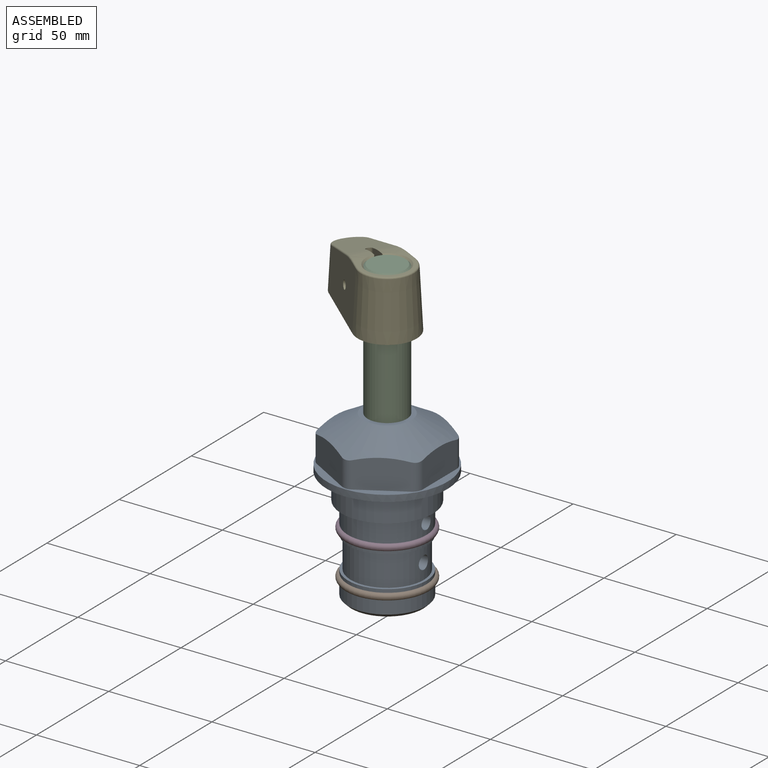
[diagram: assembled view]
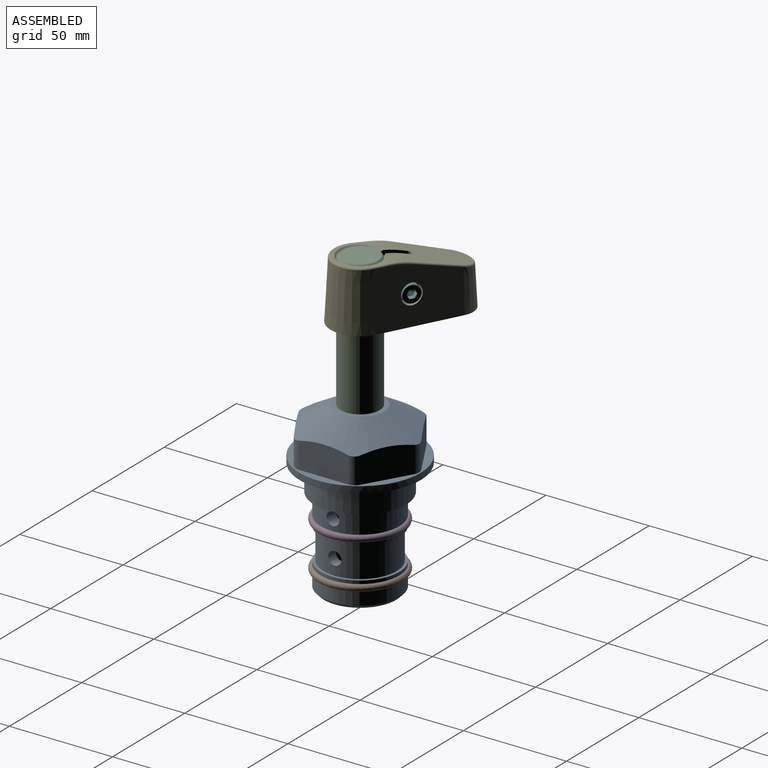
[diagram: assembled view, second angle]
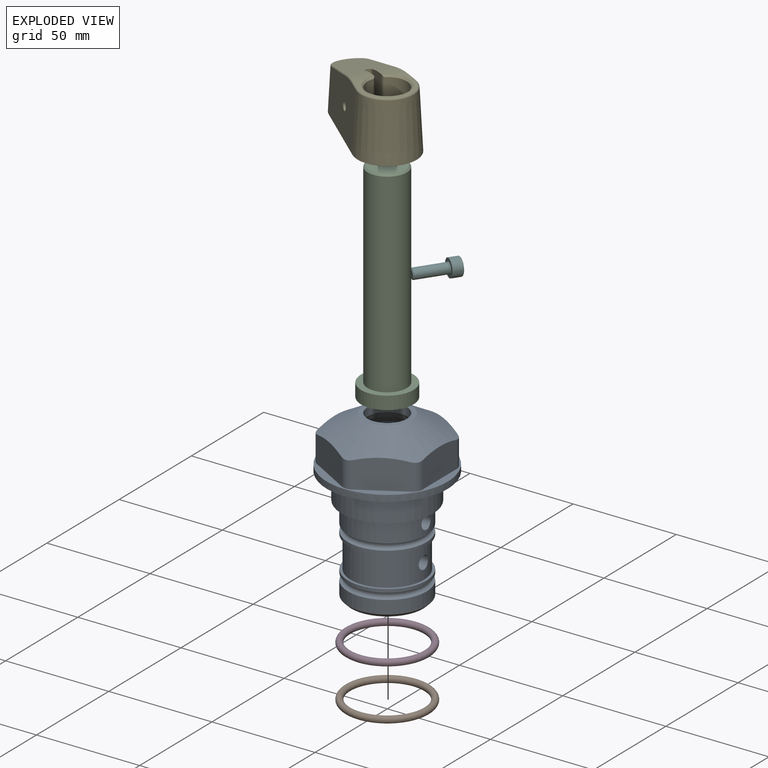
[diagram: exploded view]
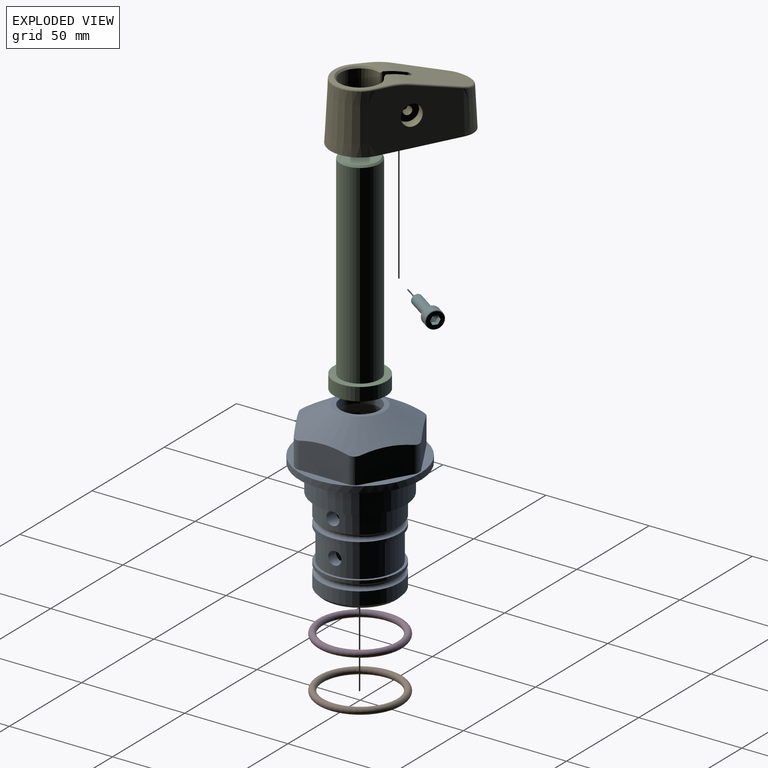
[diagram: exploded view, second angle]
ASSEMBLY  parts=6 mates=5
PART A: 36 faces, bbox 58.7x58.7x81 mm
  f0: cylinder r=17.78mm len=35.56mm, axis (0,0,1), area 1670.8mm2, adj f23,f24,f31
  f1: cylinder r=19.05mm len=38.1mm, axis (0,0,1), area 1191.9mm2, adj f26,f27,f30
  f2: plane 58.66x58.66mm, normal (0,0,-1), area 1150.6mm2, adj f3,f28
  f3: cylinder r=29.33mm len=58.66mm, axis (0,0,-1), area 585.1mm2, adj f2,f4
  f4: plane 58.66x58.66mm, normal (0,0,1), area 475.9mm2, adj f3,f5,f6,f7,f8,f9,f10,f11
  f5: plane 20.32x14.34mm, normal (-0.5,0.87,0), area 324.4mm2, adj f4,f15,f16,f17
  f6: plane 20.32x14.34mm, normal (0.5,0.87,0), area 324.4mm2, adj f4,f14,f15,f17
  f7: plane 23.48x14.34mm, normal (1,0,0), area 324.4mm2, adj f4,f13,f14,f17
  f8: plane 20.32x14.34mm, normal (0.5,-0.87,0), area 324.4mm2, adj f4,f12,f13,f17
  f9: plane 20.32x14.34mm, normal (-0.5,-0.87,0), area 324.4mm2, adj f4,f11,f12,f17
  f10: plane 23.48x14.34mm, normal (-1,0,0), area 324.4mm2, adj f4,f11,f16,f17
  f11: cylinder r=5.08mm len=12.85mm, axis (0,0,-1), area 67.2mm2, adj f4,f9,f10,f17
  f12: cylinder r=5.08mm len=12.85mm, axis (0,0,-1), area 67.2mm2, adj f4,f8,f9,f17
  f13: cylinder r=5.08mm len=12.85mm, axis (0,0,-1), area 67.2mm2, adj f4,f7,f8,f17
  f14: cylinder r=5.08mm len=12.85mm, axis (0,0,-1), area 67.2mm2, adj f4,f6,f7,f17
  f15: cylinder r=5.08mm len=12.85mm, axis (0,0,-1), area 67.2mm2, adj f4,f5,f6,f17
  f16: cylinder r=5.08mm len=12.85mm, axis (0,0,-1), area 67.2mm2, adj f4,f5,f10,f17
  f17: cone r=11.73mm half-angle=60deg, axis (0,0,-1), area 2071.8mm2, adj f5,f6,f7,f8,f9,f10,f11,f12
  f18: plane 23.46x23.46mm, normal (0,0,1), area 147.4mm2, adj f17,f35
  f19: plane 34.93x34.93mm, normal (0,0,-1), area 958mm2, adj f29
  f20: cylinder r=19.05mm len=38.1mm, axis (0,0,1), area 760.1mm2, adj f21,f29
  f21: torus R=19.05mm, axis (0,0,1), area 565.3mm2, adj f20,f22
  f22: cylinder r=19.05mm len=38.1mm, axis (0,0,1), area 190mm2, adj f21,f23
  f23: plane 38.1x38.1mm, normal (0,0,1), area 146.9mm2, adj f0,f22
  f24: plane 38.1x38.1mm, normal (0,0,-1), area 146.9mm2, adj f0,f25
  f25: cylinder r=19.05mm len=38.1mm, axis (0,0,1), area 190mm2, adj f24,f26
  f26: torus R=19.05mm, axis (0,0,1), area 565.3mm2, adj f1,f25
  f27: plane 44.45x44.45mm, normal (0,0,-1), area 411.7mm2, adj f1,f28
  f28: cylinder r=22.23mm len=44.45mm, axis (0,0,1), area 1773.5mm2, adj f2,f27
  f29: cone r=19.05mm half-angle=45deg, axis (0,0,1), area 257.5mm2, adj f19,f20
  f30: cylinder r=3.17mm len=6.75mm, axis (-1,0,0), area 128mm2, adj f1,f33
  f31: cylinder r=3.17mm len=6.35mm, axis (-1,0,0), area 102.5mm2, adj f0,f33
  f32: plane 25.4x25.4mm, normal (0,0,1), area 506.7mm2, adj f33
  f33: cylinder r=12.7mm len=66.42mm, axis (0,0,-1), area 5236.2mm2, adj f30,f31,f32,f34
  f34: cone r=9.53mm half-angle=30deg, axis (0,0,-1), area 443.4mm2, adj f33,f35
  f35: cylinder r=9.53mm len=19.05mm, axis (0,0,-1), area 240.9mm2, adj f18,f34
PART B: 1 faces, bbox 44.7x44.7x3.2 mm
  f0: torus R=19.05mm, axis (0,0,1), area 1193.9mm2
PART C: 6 faces, bbox 25.4x25.4x101.6 mm
  f0: plane 17.46x17.46mm, normal (0,0,1), area 239.5mm2, adj f5
  f1: plane 25.4x25.4mm, normal (0,0,-1), area 506.7mm2, adj f2
  f2: cylinder r=12.7mm len=25.4mm, axis (0,0,1), area 506.7mm2, adj f1,f3
  f3: plane 25.4x25.4mm, normal (0,0,1), area 221.7mm2, adj f2,f4
  f4: cylinder r=9.53mm len=94.46mm, axis (0,0,1), area 5653mm2, adj f3,f5
  f5: cone r=8.73mm half-angle=45deg, axis (0,0,-1), area 64.4mm2, adj f0,f4
PART D: same geometry as B
PART E: 47 faces, bbox 30.7x65.6x30.9 mm
  f0: plane 27.86x20.29mm, normal (-0.99,-0.12,-0.09), area 300.3mm2, adj f1,f2,f3,f4,f41,f42,f43,f45
  f1: cylinder r=9.96mm len=5.92mm, axis (1,0,0), area 1.7mm2, adj f0,f2,f46
  f2: cylinder r=14.61mm len=2.45mm, axis (0,0,-1), area 2mm2, adj f0,f1,f3,f46
  f3: cone r=13.91mm half-angle=45deg, axis (0,0,-1), area 3.5mm2, adj f0,f2,f4,f46
  f4: plane 63.5x28.58mm, normal (0,0,-1), area 861.2mm2, adj f0,f3,f5,f22,f26,f27,f28,f29
  f5: cylinder r=1.59mm len=26.75mm, axis (0,0,-1), area 133.4mm2, adj f4,f6,f22,f29
  f6: plane 31.05x21.04mm, normal (0,0.26,0.97), area 496.7mm2, adj f5,f7,f18,f19,f20,f21,f22,f29
  f7: cylinder r=0.79mm len=23.49mm, axis (0.1,-0.96,0.26), area 28.7mm2, adj f6,f8,f21,f33
  f8: bspline ~9.68x2mm, area 11.6mm2, adj f7,f9,f18,f33
  f9: cylinder r=0.79mm len=6.43mm, axis (0.12,-0.99,0), area 7.7mm2, adj f8,f10,f17,f33
  f10: plane 24.05x19.81mm, normal (0,0,1), area 97.3mm2, adj f9,f11,f15,f17,f18,f19
  f11: cone r=9.53mm half-angle=45deg, axis (0,0,1), area 54mm2, adj f10,f12,f13,f14
  f12: bspline ~5.57x3.11mm, area 5.6mm2, adj f11,f13,f18,f26
  f13: cylinder r=9.53mm len=27.2mm, axis (0,0,-1), area 1477.5mm2, adj f11,f12,f14,f26,f27,f28
  f14: bspline ~5.57x3.11mm, area 5.6mm2, adj f11,f13,f19,f28
  f15: cylinder r=0.79mm len=6.43mm, axis (-0.12,-0.99,0), area 7.7mm2, adj f10,f16,f17,f31
  f16: bspline ~9.68x2mm, area 11.6mm2, adj f15,f19,f20,f31
  f17: torus R=12.03mm, axis (0,0,1), area 51mm2, adj f9,f10,f15,f32
  f18: cylinder r=37.35mm len=9.67mm, axis (1,0,0), area 80.5mm2, adj f6,f8,f10,f12,f22,f26
  f19: cylinder r=37.35mm len=9.67mm, axis (1,0,0), area 80.5mm2, adj f6,f10,f14,f16,f28,f29
  f20: cylinder r=0.79mm len=23.49mm, axis (-0.1,-0.96,0.26), area 28.7mm2, adj f6,f16,f21,f31
  f21: bspline ~16.78x7.53mm, area 25.7mm2, adj f6,f7,f20,f34
  f22: plane 28.68x9.67mm, normal (-1,0,0), area 256.5mm2, adj f4,f5,f6,f18,f23,f26
  f23: cylinder r=2.05mm len=5.09mm, axis (1,0,0), area 65.5mm2, adj f22,f24
  f24: plane 9.75x9.75mm, normal (1,0,0), area 61.5mm2, adj f23,f25
  f25: cylinder r=4.88mm len=9.75mm, axis (1,0,0), area 162.4mm2, adj f24,f33
  f26: cylinder r=1.59mm len=28.71mm, axis (0,0,-1), area 57.1mm2, adj f4,f12,f13,f18,f22,f27
  f27: cone r=10.32mm half-angle=45deg, axis (0,0,-1), area 65mm2, adj f4,f13,f26,f28
  f28: cylinder r=1.59mm len=28.71mm, axis (0,0,-1), area 57.1mm2, adj f4,f13,f14,f19,f27,f29
  f29: plane 28.68x9.67mm, normal (1,0,0), area 256.5mm2, adj f4,f5,f6,f19,f28,f30
  f30: cylinder r=2.05mm len=10.19mm, axis (1,0,0), area 127.9mm2, adj f29,f31
  f31: plane 39.54x28.28mm, normal (-0.99,0.12,0.05), area 986mm2, adj f4,f15,f16,f20,f30,f32,f34
  f32: cone r=14.29mm half-angle=3deg, axis (0,0,-1), area 1286.9mm2, adj f4,f17,f31,f33
  f33: plane 41.4x30.14mm, normal (0.99,0.12,0.05), area 924mm2, adj f4,f7,f8,f9,f25,f32,f34
  f34: cone r=9.53mm half-angle=3deg, axis (0,0,-1), area 507.1mm2, adj f4,f21,f31,f33
  f35: plane 27.92x20.38mm, normal (0.99,-0.12,-0.09), area 344.6mm2, adj f4,f36,f37,f38,f39,f40,f41,f42
  f36: cylinder r=7.13mm len=2.54mm, axis (1,0,0), area 0mm2, adj f35,f45
  f37: cylinder r=14.61mm len=5.78mm, axis (0,0,-1), area 3.7mm2, adj f35,f38,f39,f40
  f38: cylinder r=7.13mm len=3.66mm, axis (1,0,0), area 0.6mm2, adj f35,f37,f39
  f39: plane 8.67x7.45mm, normal (-1,0,0), area 38.4mm2, adj f4,f35,f37,f38,f40,f45
  f40: cone r=13.91mm half-angle=45deg, axis (0,0,-1), area 3.5mm2, adj f4,f35,f37,f39
  f41: cone r=4.45mm half-angle=5deg, axis (0,0,-1), area 176.3mm2, adj f0,f4,f35,f42
  f42: plane 18.95x10.34mm, normal (0,-0.26,-0.97), area 116.1mm2, adj f0,f35,f41,f43,f45
  f43: cylinder r=9.96mm len=14.23mm, axis (1,0,0), area 35.7mm2, adj f0,f42,f44,f45
  f44: plane 7.59x0.75mm, normal (-1,0,0), area 3.8mm2, adj f43,f45
  f45: cylinder r=6.67mm len=20.16mm, axis (0,0,-1), area 224.8mm2, adj f0,f4,f35,f36,f39,f42,f43,f44
  f46: plane 7.45x5.29mm, normal (1,0,0), area 24.7mm2, adj f0,f1,f2,f3,f4,f45
PART F: 18 faces, bbox 9.2x9.2x21 mm
  f0: cone r=2.28mm half-angle=45deg, axis (0,0,1), area 8.8mm2, adj f1,f16
  f1: cylinder r=2.5mm len=14.83mm, axis (0,0,-1), area 233mm2, adj f0,f15
  f2: cone r=2.28mm half-angle=45deg, axis (0,0,1), area 8.8mm2, adj f3,f15
  f3: cylinder r=2.5mm len=5mm, axis (0,0,-1), area 0.8mm2, adj f2,f4
  f4: torus R=2.75mm, axis (0,0,-1), area 6.4mm2, adj f3,f14
  f5: cylinder r=4.25mm len=8.5mm, axis (0,0,-1), area 122.2mm2, adj f6,f14
  f6: torus R=3.82mm, axis (0,0,-1), area 17.2mm2, adj f5,f17
  f7: cone r=1.15mm half-angle=60deg, axis (0,0,1), area 16mm2, adj f8,f9,f10,f11,f12,f13
  f8: plane 2.76x2mm, normal (0.87,0.5,0), area 6mm2, adj f7,f9,f13,f17
  f9: plane 2.76x2.31mm, normal (0,1,0), area 6mm2, adj f7,f8,f10,f17
  f10: plane 2.76x2mm, normal (-0.87,0.5,0), area 6mm2, adj f7,f9,f11,f17
  f11: plane 2.76x2mm, normal (-0.87,-0.5,0), area 6mm2, adj f7,f10,f12,f17
  f12: plane 2.71x2.31mm, normal (0,-1,0), area 6mm2, adj f7,f11,f13,f17
  f13: plane 2.76x2mm, normal (0.87,-0.5,0), area 6mm2, adj f7,f8,f12,f17
  f14: plane 8.5x8.5mm, normal (0,0,-1), area 33mm2, adj f4,f5
  f15: plane 5x5mm, normal (0,0,1), area 6.2mm2, adj f1,f2
  f16: plane 4.13x4.13mm, normal (0,0,-1), area 13.4mm2, adj f0
  f17: plane 7.65x7.65mm, normal (0,0,1), area 32.1mm2, adj f6,f8,f9,f10,f11,f12,f13
PLACE A at identity fixed
PLACE B rot(axis=(1,0,0),0deg) t=(0,0,-21.59)mm
PLACE C rot(axis=(0,0,-1),34.2deg) t=(0,0,27.12)mm
PLACE D at identity
PLACE E rot(axis=(0,0,1),55.8deg) t=(0,0,61.83)mm
PLACE F rot(axis=(-0.92,0.28,-0.28),95deg) t=(-10.79,15.41,75.83)mm
MATE cylindrical C.f2 <-> A.f0  axis (0,0,1) through (0,0,-4.63)mm
MATE fastened D.f0 <-> A.f0  axis (0,0,1) through (0,0,-24.51)mm
MATE fastened B.f0 <-> A.f0  axis (0,0,1) through (0,0,-46.1)mm
MATE fastened E.f2 <-> C.f2  axis (0,0,1) through (0,0,90.62)mm
MATE fastened F.f7 <-> E.f1  axis (-0.56,-0.83,0) through (-10.79,15.41,75.83)mm
